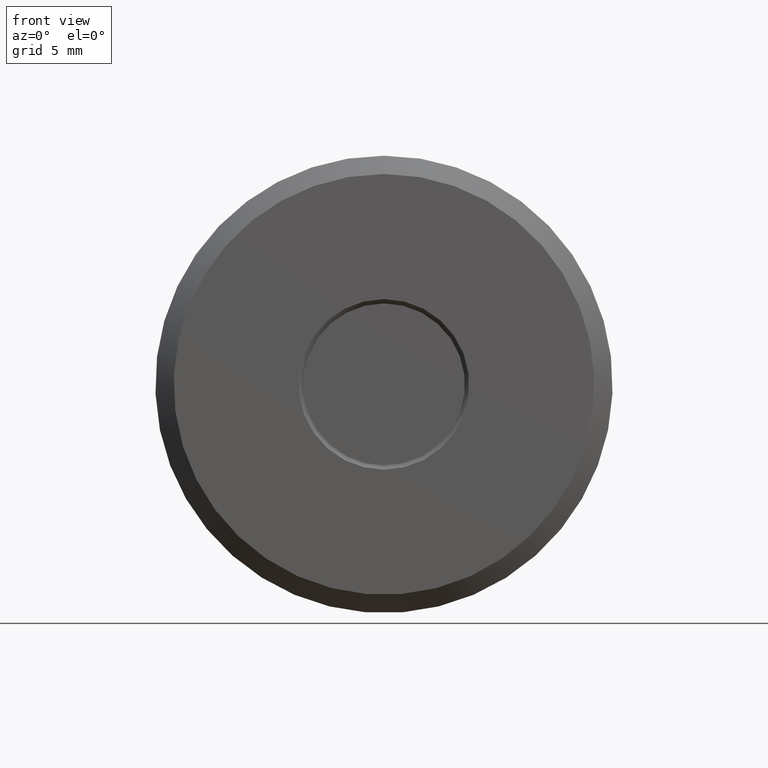
[diagram: clean part render]
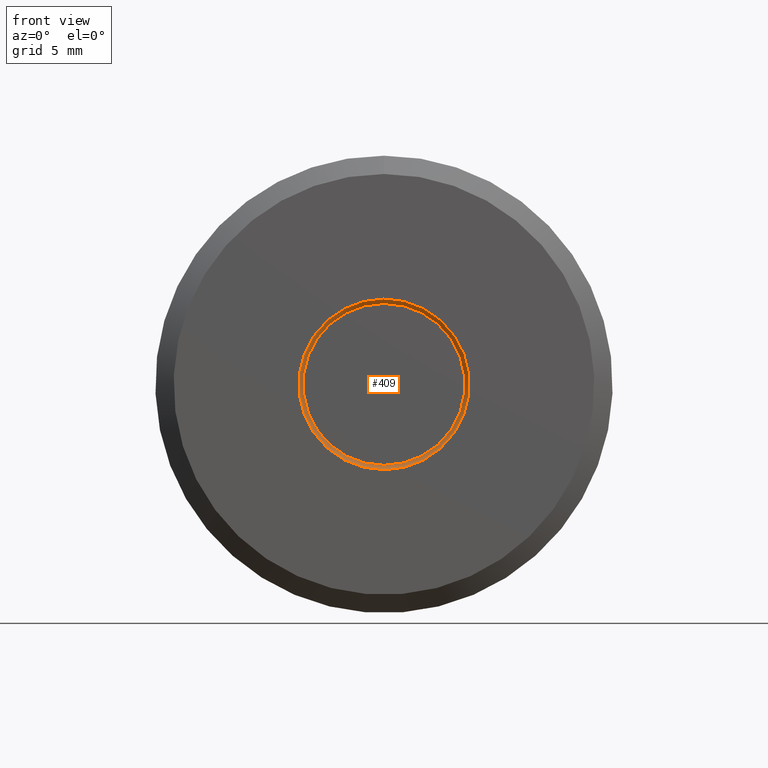
[diagram: same view with one face highlighted and labeled with its STEP entity id]
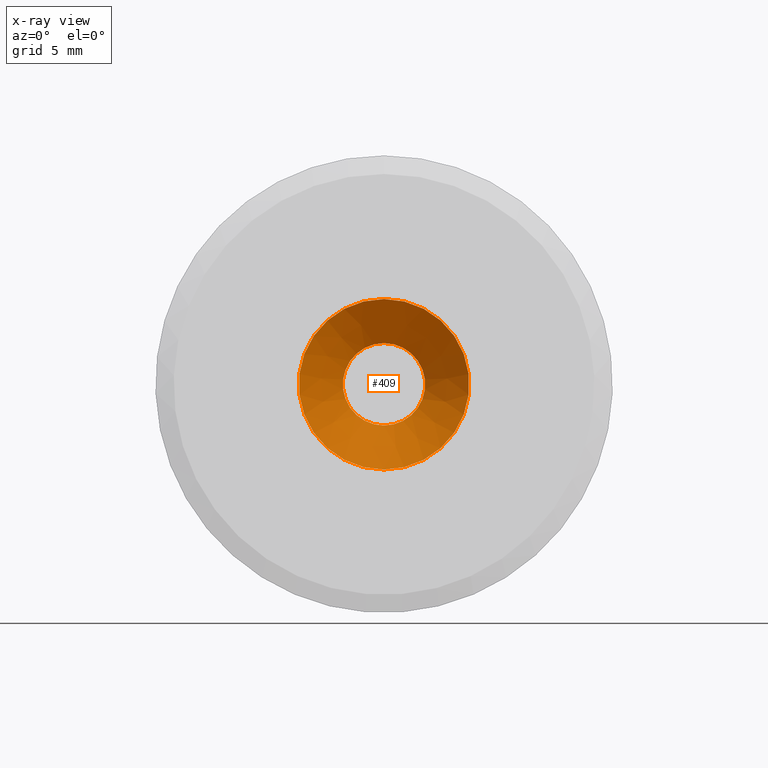
[diagram: x-ray of the same camera — body ghosted, the highlighted face saturated]
A machine part, front view. The second image highlights one B-rep face of the part: STEP entity #409.
The next image is the same camera in x-ray: the body ghosted, the highlighted face saturated — about 0% of this face is hidden behind the body in this view.
In plain terms, the highlighted conical surface has half-angle 45 deg.
Its self-contained STEP definition (entity closure, byte-faithful):
#5 = FACE_BOUND ( 'NONE', #170, .T. ) ;
#25 = VERTEX_POINT ( 'NONE', #130 ) ;
#38 = ORIENTED_EDGE ( 'NONE', *, *, #109, .F. ) ;
#45 = ORIENTED_EDGE ( 'NONE', *, *, #124, .T. ) ;
#66 = DIRECTION ( 'NONE',  ( 0.0000000000000000000, 0.0000000000000000000, 1.000000000000000000 ) ) ;
#108 = DIRECTION ( 'NONE',  ( 0.0000000000000000000, 0.0000000000000000000, 1.000000000000000000 ) ) ;
#109 = EDGE_CURVE ( 'NONE', #140, #140, #342, .T. ) ;
#124 = EDGE_CURVE ( 'NONE', #25, #25, #329, .T. ) ;
#130 = CARTESIAN_POINT ( 'NONE',  ( 0.0000000000000000000, 0.07238356781186547400, 0.06750000000000000400 ) ) ;
#133 = DIRECTION ( 'NONE',  ( 0.0000000000000000000, 0.0000000000000000000, -1.000000000000000000 ) ) ;
#140 = VERTEX_POINT ( 'NONE', #224 ) ;
#170 = EDGE_LOOP ( 'NONE', ( #45 ) ) ;
#178 = CARTESIAN_POINT ( 'NONE',  ( 0.0000000000000000000, -1.038330289153975800E-018, 0.0000000000000000000 ) ) ;
#219 = CARTESIAN_POINT ( 'NONE',  ( 0.0000000000000000000, -1.038330289153975800E-018, 0.0000000000000000000 ) ) ;
#224 = CARTESIAN_POINT ( 'NONE',  ( 0.0000000000000000000, -1.038330289153975800E-018, 0.1398835678118647000 ) ) ;
#248 = DIRECTION ( 'NONE',  ( 0.0000000000000000000, -1.000000000000000000, 0.0000000000000000000 ) ) ;
#276 = CARTESIAN_POINT ( 'NONE',  ( 0.0000000000000000000, 0.07238356781186547400, 0.0000000000000000000 ) ) ;
#329 = CIRCLE ( 'NONE', #421, 0.06750000000000000400 ) ;
#341 = AXIS2_PLACEMENT_3D ( 'NONE', #219, #508, #108 ) ;
#342 = CIRCLE ( 'NONE', #341, 0.1398835678118647000 ) ;
#409 = ADVANCED_FACE ( 'NONE', ( #5, #534 ), #415, .F. ) ;
#415 = CONICAL_SURFACE ( 'NONE', #535, 0.1398835678118647000, 0.7853981633974429500 ) ;
#421 = AXIS2_PLACEMENT_3D ( 'NONE', #276, #518, #66 ) ;
#501 = EDGE_LOOP ( 'NONE', ( #38 ) ) ;
#508 = DIRECTION ( 'NONE',  ( -0.0000000000000000000, 1.000000000000000000, -0.0000000000000000000 ) ) ;
#518 = DIRECTION ( 'NONE',  ( -0.0000000000000000000, 1.000000000000000000, -0.0000000000000000000 ) ) ;
#534 = FACE_OUTER_BOUND ( 'NONE', #501, .T. ) ;
#535 = AXIS2_PLACEMENT_3D ( 'NONE', #178, #248, #133 ) ;